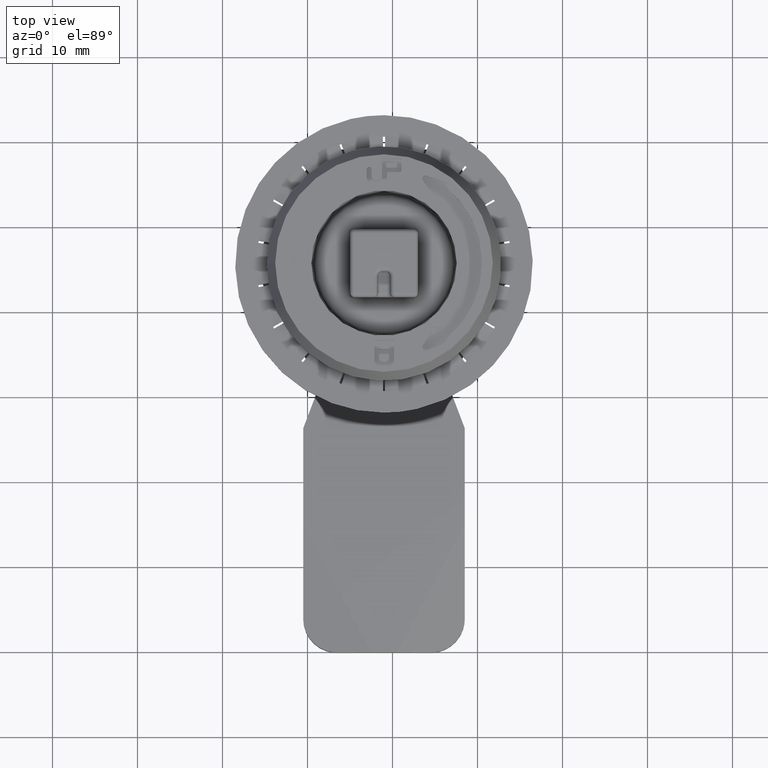
[diagram: clean part render]
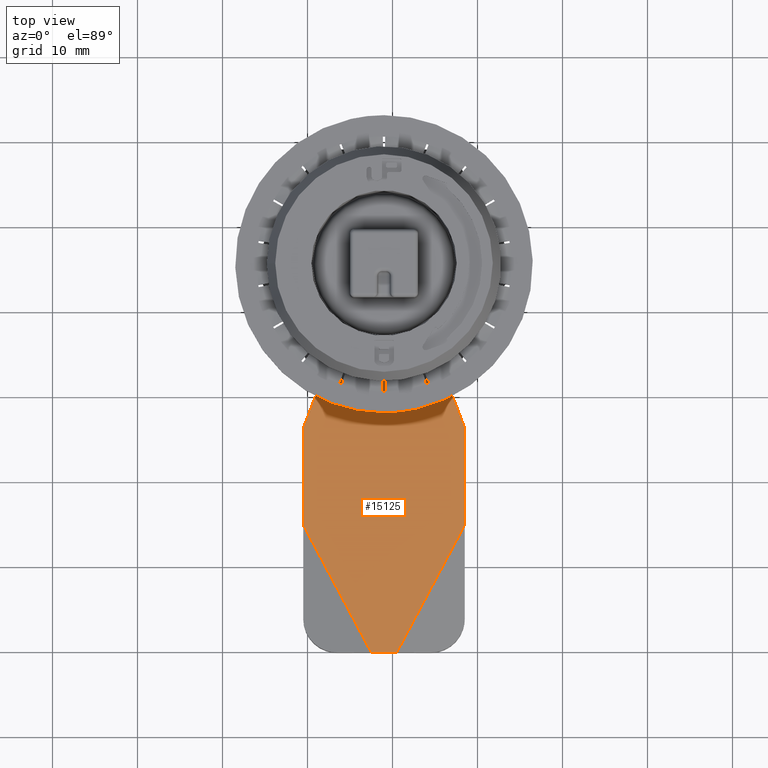
[diagram: same view with one face highlighted and labeled with its STEP entity id]
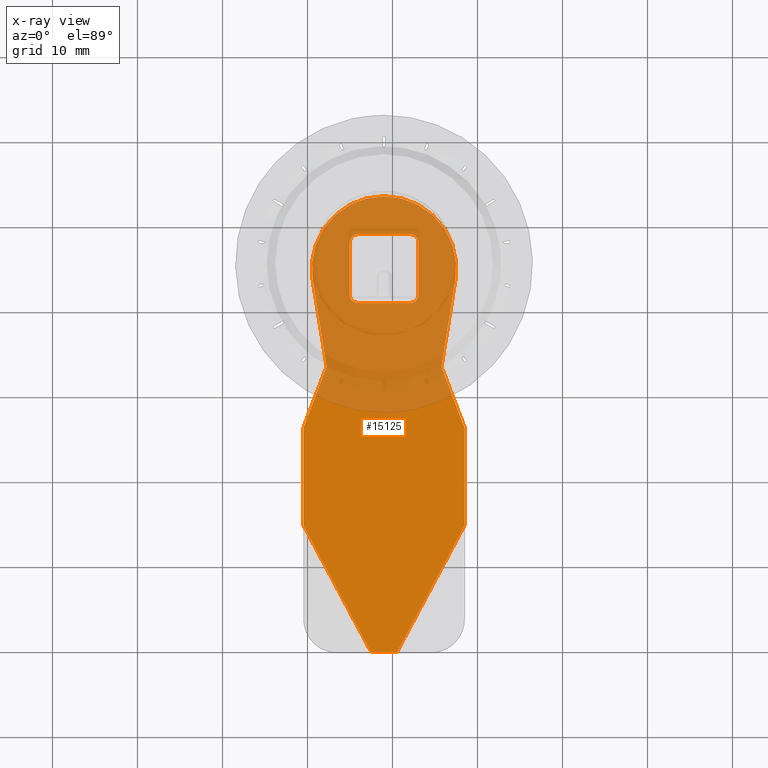
[diagram: x-ray of the same camera — body ghosted, the highlighted face saturated]
A machine part, top view. The second image highlights one B-rep face of the part: STEP entity #15125.
The next image is the same camera in x-ray: the body ghosted, the highlighted face saturated — about 41% of this face is hidden behind the body in this view.
In plain terms, the highlighted planar face has unit normal (0, 0, 1).
Its self-contained STEP definition (entity closure, byte-faithful):
#283=PLANE('',#16057);
#750=CIRCLE('',#16058,0.5);
#751=CIRCLE('',#16059,8.5);
#752=CIRCLE('',#16060,0.5);
#753=CIRCLE('',#16061,1.);
#754=CIRCLE('',#16062,1.);
#755=CIRCLE('',#16063,1.);
#756=CIRCLE('',#16064,1.);
#1123=FACE_BOUND('',#2643,.T.);
#1780=FACE_OUTER_BOUND('',#2642,.T.);
#2642=EDGE_LOOP('',(#13465,#13466,#13467,#13468,#13469,#13470,#13471,#13472,
#13473,#13474,#13475,#13476));
#2643=EDGE_LOOP('',(#13477,#13478,#13479,#13480,#13481,#13482,#13483,#13484));
#4414=LINE('',#84512,#5449);
#4415=LINE('',#84516,#5450);
#4416=LINE('',#84518,#5451);
#4417=LINE('',#84522,#5452);
#4418=LINE('',#84524,#5453);
#4419=LINE('',#84528,#5454);
#4420=LINE('',#84530,#5455);
#4421=LINE('',#84532,#5456);
#4422=LINE('',#84533,#5457);
#4423=LINE('',#84536,#5458);
#4424=LINE('',#84540,#5459);
#4425=LINE('',#84544,#5460);
#4426=LINE('',#84548,#5461);
#5449=VECTOR('',#18606,11.289201229868);
#5450=VECTOR('',#18609,7.63284210876752);
#5451=VECTOR('',#18610,10.3302952523131);
#5452=VECTOR('',#18613,10.3302952523131);
#5453=VECTOR('',#18614,7.63284210876752);
#5454=VECTOR('',#18617,11.289201229868);
#5455=VECTOR('',#18618,17.);
#5456=VECTOR('',#18619,3.00000000000001);
#5457=VECTOR('',#18620,17.);
#5458=VECTOR('',#18621,6.10000000000003);
#5459=VECTOR('',#18624,6.10000000000003);
#5460=VECTOR('',#18627,6.10000000000003);
#5461=VECTOR('',#18630,6.10000000000003);
#6982=VERTEX_POINT('',#84510);
#6983=VERTEX_POINT('',#84511);
#6984=VERTEX_POINT('',#84513);
#6985=VERTEX_POINT('',#84515);
#6986=VERTEX_POINT('',#84517);
#6987=VERTEX_POINT('',#84519);
#6988=VERTEX_POINT('',#84521);
#6989=VERTEX_POINT('',#84523);
#6990=VERTEX_POINT('',#84525);
#6991=VERTEX_POINT('',#84527);
#6992=VERTEX_POINT('',#84529);
#6993=VERTEX_POINT('',#84531);
#6994=VERTEX_POINT('',#84534);
#6995=VERTEX_POINT('',#84535);
#6996=VERTEX_POINT('',#84537);
#6997=VERTEX_POINT('',#84539);
#6998=VERTEX_POINT('',#84541);
#6999=VERTEX_POINT('',#84543);
#7000=VERTEX_POINT('',#84545);
#7001=VERTEX_POINT('',#84547);
#9188=EDGE_CURVE('',#6982,#6983,#4414,.T.);
#9189=EDGE_CURVE('',#6984,#6982,#750,.T.);
#9190=EDGE_CURVE('',#6985,#6984,#4415,.T.);
#9191=EDGE_CURVE('',#6986,#6985,#4416,.T.);
#9192=EDGE_CURVE('',#6987,#6986,#751,.T.);
#9193=EDGE_CURVE('',#6988,#6987,#4417,.T.);
#9194=EDGE_CURVE('',#6989,#6988,#4418,.T.);
#9195=EDGE_CURVE('',#6989,#6990,#752,.T.);
#9196=EDGE_CURVE('',#6990,#6991,#4419,.T.);
#9197=EDGE_CURVE('',#6992,#6991,#4420,.T.);
#9198=EDGE_CURVE('',#6992,#6993,#4421,.T.);
#9199=EDGE_CURVE('',#6993,#6983,#4422,.T.);
#9200=EDGE_CURVE('',#6994,#6995,#4423,.T.);
#9201=EDGE_CURVE('',#6995,#6996,#753,.T.);
#9202=EDGE_CURVE('',#6996,#6997,#4424,.T.);
#9203=EDGE_CURVE('',#6997,#6998,#754,.T.);
#9204=EDGE_CURVE('',#6998,#6999,#4425,.T.);
#9205=EDGE_CURVE('',#6999,#7000,#755,.T.);
#9206=EDGE_CURVE('',#7000,#7001,#4426,.T.);
#9207=EDGE_CURVE('',#7001,#6994,#756,.T.);
#13465=ORIENTED_EDGE('',*,*,#9188,.F.);
#13466=ORIENTED_EDGE('',*,*,#9189,.F.);
#13467=ORIENTED_EDGE('',*,*,#9190,.F.);
#13468=ORIENTED_EDGE('',*,*,#9191,.F.);
#13469=ORIENTED_EDGE('',*,*,#9192,.F.);
#13470=ORIENTED_EDGE('',*,*,#9193,.F.);
#13471=ORIENTED_EDGE('',*,*,#9194,.F.);
#13472=ORIENTED_EDGE('',*,*,#9195,.T.);
#13473=ORIENTED_EDGE('',*,*,#9196,.T.);
#13474=ORIENTED_EDGE('',*,*,#9197,.F.);
#13475=ORIENTED_EDGE('',*,*,#9198,.T.);
#13476=ORIENTED_EDGE('',*,*,#9199,.T.);
#13477=ORIENTED_EDGE('',*,*,#9200,.T.);
#13478=ORIENTED_EDGE('',*,*,#9201,.T.);
#13479=ORIENTED_EDGE('',*,*,#9202,.T.);
#13480=ORIENTED_EDGE('',*,*,#9203,.T.);
#13481=ORIENTED_EDGE('',*,*,#9204,.T.);
#13482=ORIENTED_EDGE('',*,*,#9205,.T.);
#13483=ORIENTED_EDGE('',*,*,#9206,.T.);
#13484=ORIENTED_EDGE('',*,*,#9207,.T.);
#15125=ADVANCED_FACE('',(#1780,#1123),#283,.T.);
#16057=AXIS2_PLACEMENT_3D('',#84509,#18604,#18605);
#16058=AXIS2_PLACEMENT_3D('',#84514,#18607,#18608);
#16059=AXIS2_PLACEMENT_3D('',#84520,#18611,#18612);
#16060=AXIS2_PLACEMENT_3D('',#84526,#18615,#18616);
#16061=AXIS2_PLACEMENT_3D('',#84538,#18622,#18623);
#16062=AXIS2_PLACEMENT_3D('',#84542,#18625,#18626);
#16063=AXIS2_PLACEMENT_3D('',#84546,#18628,#18629);
#16064=AXIS2_PLACEMENT_3D('',#84549,#18631,#18632);
#18604=DIRECTION('center_axis',(0.,0.,1.));
#18605=DIRECTION('ref_axis',(0.,-1.,0.));
#18606=DIRECTION('',(1.24012826544541E-15,-1.,0.));
#18607=DIRECTION('center_axis',(0.,6.47809117088577E-16,-1.));
#18608=DIRECTION('ref_axis',(0.,-1.,-6.47809117088577E-16));
#18609=DIRECTION('',(0.355993760545314,-0.934488331897625,-6.05370061216177E-16));
#18610=DIRECTION('',(-0.15894452572781,-0.987287515236145,-6.39573853557702E-16));
#18611=DIRECTION('center_axis',(0.,6.47809117088577E-16,-1.));
#18612=DIRECTION('ref_axis',(0.,-1.,-6.47809117088577E-16));
#18613=DIRECTION('',(-0.158944525727806,0.987287515236146,6.39573853557702E-16));
#18614=DIRECTION('',(0.355993760545323,0.934488331897621,6.05370061216175E-16));
#18615=DIRECTION('center_axis',(0.,-6.47809117088577E-16,1.));
#18616=DIRECTION('ref_axis',(0.,-1.,-6.47809117088577E-16));
#18617=DIRECTION('',(0.,-1.,0.));
#18618=DIRECTION('',(-0.470588235294113,0.882352941176473,0.));
#18619=DIRECTION('',(1.,-2.08166817117217E-14,0.));
#18620=DIRECTION('',(0.470588235294113,0.882352941176473,0.));
#18621=DIRECTION('',(0.,1.,6.47809117088577E-16));
#18622=DIRECTION('center_axis',(0.,6.47809117088577E-16,-1.));
#18623=DIRECTION('ref_axis',(0.,-1.,-6.47809117088577E-16));
#18624=DIRECTION('',(1.,0.,0.));
#18625=DIRECTION('center_axis',(0.,6.47809117088577E-16,-1.));
#18626=DIRECTION('ref_axis',(0.,-1.,-6.47809117088577E-16));
#18627=DIRECTION('',(0.,-1.,-6.47809117088577E-16));
#18628=DIRECTION('center_axis',(0.,6.47809117088577E-16,-1.));
#18629=DIRECTION('ref_axis',(0.,-1.,-6.47809117088577E-16));
#18630=DIRECTION('',(-1.,-3.72538975988461E-14,-2.41334145116167E-29));
#18631=DIRECTION('center_axis',(0.,6.47809117088577E-16,-1.));
#18632=DIRECTION('ref_axis',(0.,-1.,-6.47809117088577E-16));
#84509=CARTESIAN_POINT('Origin',(174.5,163.85,-48.5));
#84510=CARTESIAN_POINT('',(178.5,186.139201229868,-48.5));
#84511=CARTESIAN_POINT('',(178.5,174.85,-48.5));
#84512=CARTESIAN_POINT('',(178.5,163.85,-48.5));
#84513=CARTESIAN_POINT('',(178.467244165949,186.317198110141,-48.5));
#84514=CARTESIAN_POINT('Origin',(178.,186.139201229868,-48.5));
#84515=CARTESIAN_POINT('',(175.75,193.450000000001,-48.5));
#84516=CARTESIAN_POINT('',(166.211501791339,218.488684009985,-48.5));
#84517=CARTESIAN_POINT('',(177.391943879507,203.648971531313,-48.5));
#84518=CARTESIAN_POINT('',(178.324517716575,209.441675005416,-48.5));
#84519=CARTESIAN_POINT('',(160.608056120493,203.648971531313,-48.5));
#84520=CARTESIAN_POINT('Origin',(169.,205.,-48.5));
#84521=CARTESIAN_POINT('',(162.25,193.450000000001,-48.5));
#84522=CARTESIAN_POINT('',(158.872922877835,214.426790898811,-48.5));
#84523=CARTESIAN_POINT('',(159.532755834051,186.317198110141,-48.5));
#84524=CARTESIAN_POINT('',(167.762525638089,207.920452741055,-48.5));
#84525=CARTESIAN_POINT('',(159.5,186.139201229868,-48.5));
#84526=CARTESIAN_POINT('Origin',(160.,186.139201229868,-48.5));
#84527=CARTESIAN_POINT('',(159.5,174.85,-48.5));
#84528=CARTESIAN_POINT('',(159.5,186.231213612335,-48.5));
#84529=CARTESIAN_POINT('',(167.5,159.85,-48.5));
#84530=CARTESIAN_POINT('',(167.5,159.85,-48.5));
#84531=CARTESIAN_POINT('',(170.5,159.85,-48.5));
#84532=CARTESIAN_POINT('',(163.5,159.85,-48.5));
#84533=CARTESIAN_POINT('',(173.046712802768,164.62508650519,-48.5));
#84534=CARTESIAN_POINT('',(164.95,201.95,-48.5));
#84535=CARTESIAN_POINT('',(164.95,208.05,-48.5));
#84536=CARTESIAN_POINT('',(164.95,213.5,-48.5));
#84537=CARTESIAN_POINT('',(165.95,209.05,-48.5));
#84538=CARTESIAN_POINT('Origin',(165.95,208.05,-48.5));
#84539=CARTESIAN_POINT('',(172.05,209.05,-48.5));
#84540=CARTESIAN_POINT('',(153.116140255467,209.05,-48.5));
#84541=CARTESIAN_POINT('',(173.05,208.05,-48.5));
#84542=CARTESIAN_POINT('Origin',(172.05,208.05,-48.5));
#84543=CARTESIAN_POINT('',(173.05,201.95,-48.5));
#84544=CARTESIAN_POINT('',(173.05,213.5,-48.5));
#84545=CARTESIAN_POINT('',(172.05,200.95,-48.5));
#84546=CARTESIAN_POINT('Origin',(172.05,201.95,-48.5));
#84547=CARTESIAN_POINT('',(165.95,200.95,-48.5));
#84548=CARTESIAN_POINT('',(153.116140255468,200.949999999999,-48.5));
#84549=CARTESIAN_POINT('Origin',(165.95,201.95,-48.5));